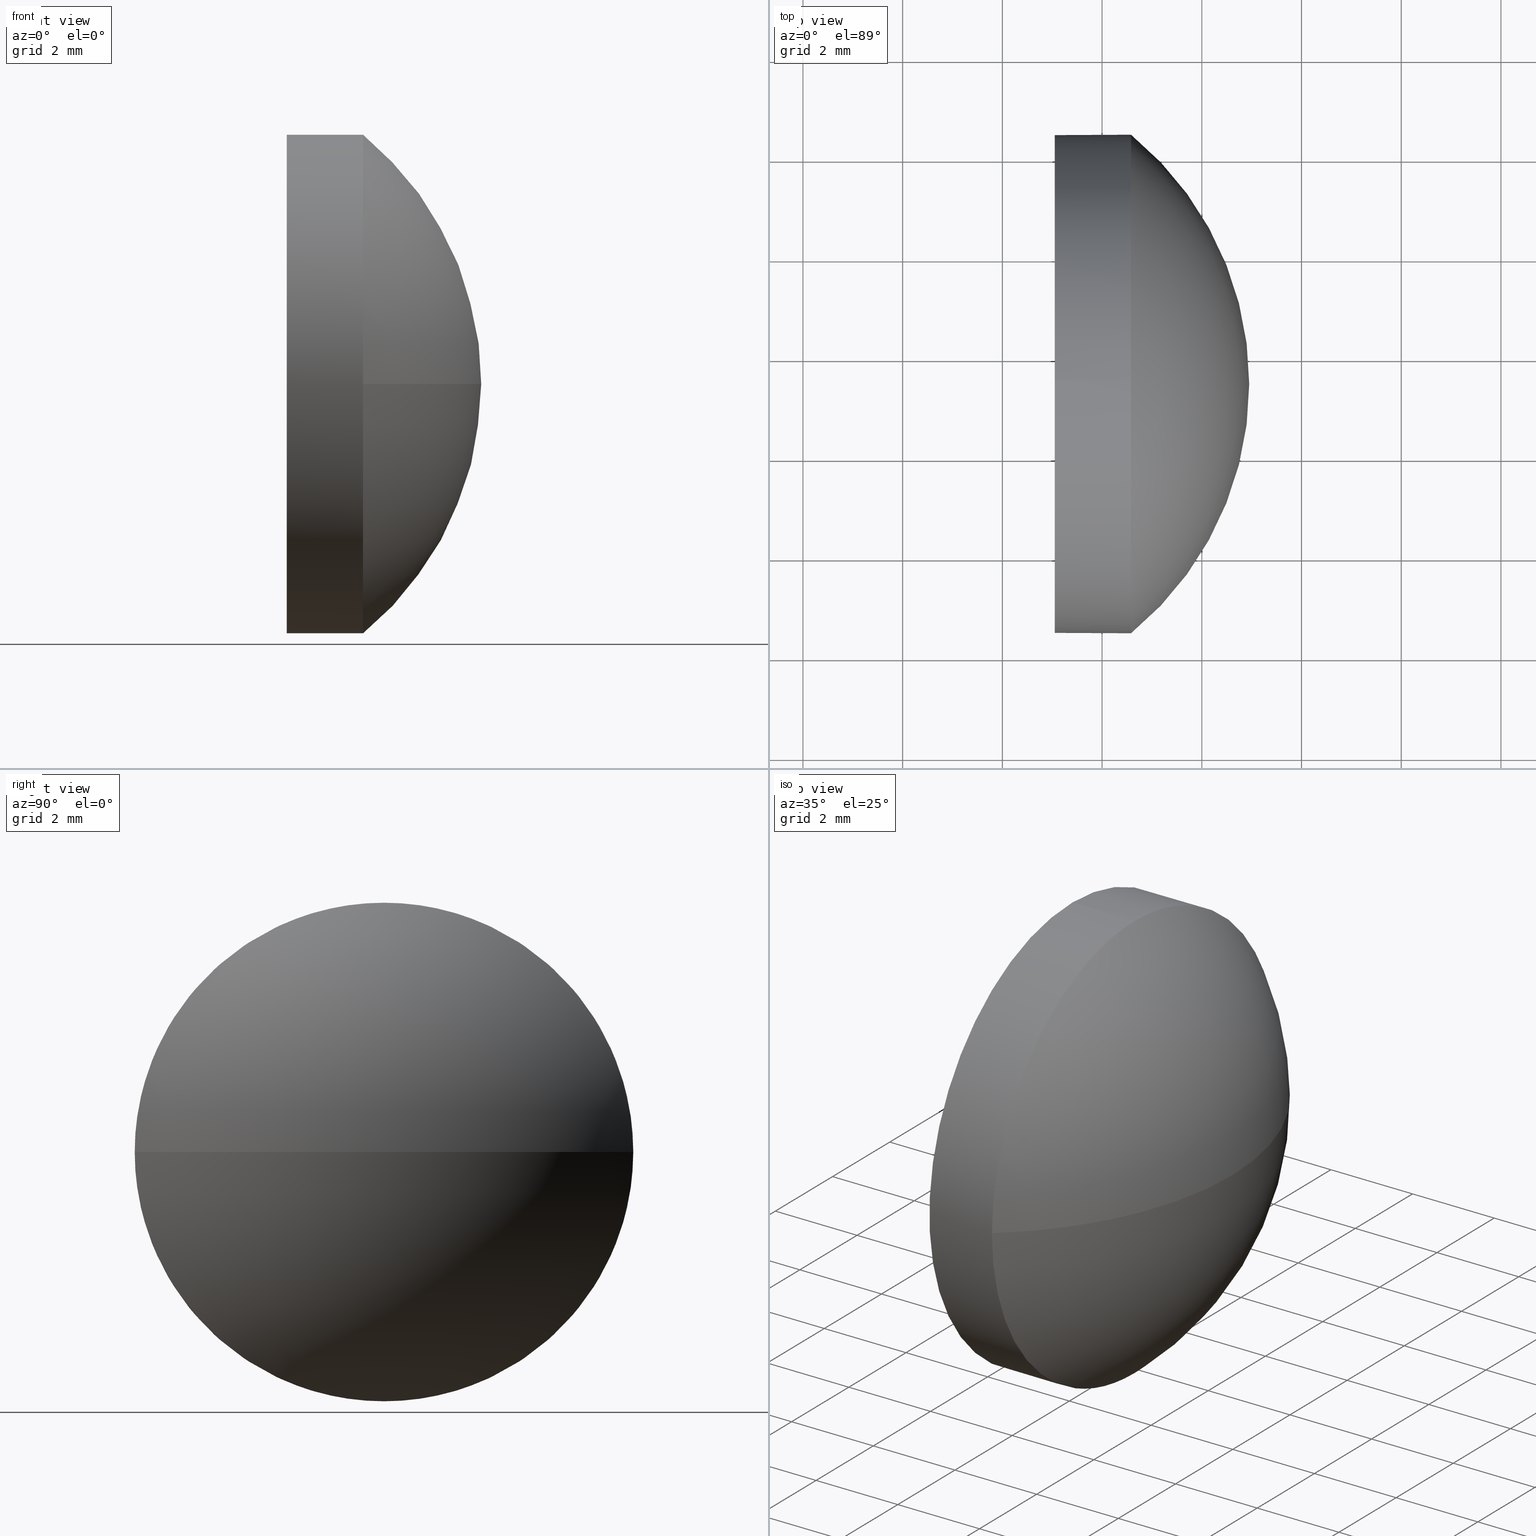
[diagram: canonical four-view strip — front | top / right | iso, engineering-drawing reading convention]
A machine part, canonical four-view strip (front | top / right | iso — engineering-drawing reading convention). The complete STEP part file that produces these views, byte-faithful:
ISO-10303-21;
HEADER;
FILE_DESCRIPTION (( 'STEP AP214' ),
    '1' );
FILE_NAME ('100186.STEP',
    '2019-05-21T05:49:32',
    ( '' ),
    ( '' ),
    'SwSTEP 2.0',
    'SolidWorks 2016',
    '' );
FILE_SCHEMA (( 'AUTOMOTIVE_DESIGN' ));
ENDSEC;

DATA;
#1 = PRESENTATION_LAYER_ASSIGNMENT (  '', '', ( #114 ) ) ;
#2 = PRODUCT_DEFINITION ( 'δ֪', '', #73, #129 ) ;
#3 = ADVANCED_BREP_SHAPE_REPRESENTATION ( '100186', ( #124, #131 ), #48 ) ;
#4 = CARTESIAN_POINT ( 'NONE',  ( 424.5813353116467400, -21.53983811112432500, 0.0000000000000000000 ) ) ;
#5 = AXIS2_PLACEMENT_3D ( 'NONE', #77, #107, #137 ) ;
#6 = ORIENTED_EDGE ( 'NONE', *, *, #170, .T. ) ;
#7 = PRODUCT ( '100186', '100186', '', ( #68 ) ) ;
#8 = DIRECTION ( 'NONE',  ( 0.0000000000000000000, 1.000000000000000000, 1.224646799147353200E-016 ) ) ;
#9 = FILL_AREA_STYLE_COLOUR ( '', #83 ) ;
#10 = FACE_OUTER_BOUND ( 'NONE', #123, .T. ) ;
#11 = DIRECTION ( 'NONE',  ( -1.000000000000000000, -0.0000000000000000000, -0.0000000000000000000 ) ) ;
#12 =( LENGTH_UNIT ( ) NAMED_UNIT ( * ) SI_UNIT ( .MILLI., .METRE. ) );
#13 = CARTESIAN_POINT ( 'NONE',  ( 424.5813353116467400, -26.53983811112431500, 0.0000000000000000000 ) ) ;
#14 = VERTEX_POINT ( 'NONE', #4 ) ;
#15 = AXIS2_PLACEMENT_3D ( 'NONE', #96, #29, #44 ) ;
#16 = ORIENTED_EDGE ( 'NONE', *, *, #150, .F. ) ;
#17 = ADVANCED_FACE ( 'NONE', ( #76 ), #156, .T. ) ;
#18 = VERTEX_POINT ( 'NONE', #160 ) ;
#19 = ORIENTED_EDGE ( 'NONE', *, *, #145, .T. ) ;
#20 = EDGE_CURVE ( 'NONE', #112, #167, #117, .T. ) ;
#21 = CARTESIAN_POINT ( 'NONE',  ( 426.9513353116466900, -26.53983811112431500, 0.0000000000000000000 ) ) ;
#22 = VERTEX_POINT ( 'NONE', #172 ) ;
#23 =( NAMED_UNIT ( * ) PLANE_ANGLE_UNIT ( ) SI_UNIT ( $, .RADIAN. ) );
#24 = DIRECTION ( 'NONE',  ( 0.0000000000000000000, 0.0000000000000000000, -1.000000000000000000 ) ) ;
#25 = SPHERICAL_SURFACE ( 'NONE', #159, 6.459261603375517200 ) ;
#26 = DIRECTION ( 'NONE',  ( 1.000000000000000000, 0.0000000000000000000, 0.0000000000000000000 ) ) ;
#27 = UNCERTAINTY_MEASURE_WITH_UNIT (LENGTH_MEASURE( 1.000000000000000100E-005 ), #168, 'distance_accuracy_value', 'NONE');
#28 = DIRECTION ( 'NONE',  ( 0.0000000000000000000, 0.0000000000000000000, 1.000000000000000000 ) ) ;
#29 = DIRECTION ( 'NONE',  ( -0.0000000000000000000, 0.0000000000000000000, 1.000000000000000000 ) ) ;
#30 =( NAMED_UNIT ( * ) PLANE_ANGLE_UNIT ( ) SI_UNIT ( $, .RADIAN. ) );
#31 = AXIS2_PLACEMENT_3D ( 'NONE', #116, #37, #162 ) ;
#32 = ORIENTED_EDGE ( 'NONE', *, *, #102, .T. ) ;
#33 = LINE ( 'NONE', #110, #78 ) ;
#34 = ADVANCED_FACE ( 'NONE', ( #59 ), #25, .T. ) ;
#35 = FACE_OUTER_BOUND ( 'NONE', #104, .T. ) ;
#36 = AXIS2_PLACEMENT_3D ( 'NONE', #64, #67, #176 ) ;
#37 = DIRECTION ( 'NONE',  ( -0.0000000000000000000, 0.0000000000000000000, -1.000000000000000000 ) ) ;
#38 = DIRECTION ( 'NONE',  ( -1.000000000000000000, -0.0000000000000000000, -0.0000000000000000000 ) ) ;
#39 = AXIS2_PLACEMENT_3D ( 'NONE', #13, #11, #28 ) ;
#40 = DIRECTION ( 'NONE',  ( -1.000000000000000000, -0.0000000000000000000, -0.0000000000000000000 ) ) ;
#41 = DIRECTION ( 'NONE',  ( -1.000000000000000000, -0.0000000000000000000, -0.0000000000000000000 ) ) ;
#42 = AXIS2_PLACEMENT_3D ( 'NONE', #135, #40, #165 ) ;
#43 = UNCERTAINTY_MEASURE_WITH_UNIT (LENGTH_MEASURE( 1.000000000000000100E-005 ), #118, 'distance_accuracy_value', 'NONE');
#44 = DIRECTION ( 'NONE',  ( 1.000000000000000000, 0.0000000000000000000, 0.0000000000000000000 ) ) ;
#45 = ORIENTED_EDGE ( 'NONE', *, *, #170, .F. ) ;
#46 = EDGE_CURVE ( 'NONE', #57, #22, #49, .T. ) ;
#47 = ORIENTED_EDGE ( 'NONE', *, *, #92, .T. ) ;
#48 =( GEOMETRIC_REPRESENTATION_CONTEXT ( 3 ) GLOBAL_UNCERTAINTY_ASSIGNED_CONTEXT ( ( #141 ) ) GLOBAL_UNIT_ASSIGNED_CONTEXT ( ( #12, #180, #99 ) ) REPRESENTATION_CONTEXT ( 'NONE', 'WORKASPACE' ) );
#49 = CIRCLE ( 'NONE', #178, 4.999999999999997300 ) ;
#50 =( NAMED_UNIT ( * ) SI_UNIT ( $, .STERADIAN. ) SOLID_ANGLE_UNIT ( ) );
#51 = PRESENTATION_STYLE_ASSIGNMENT (( #140 ) ) ;
#52 = ORIENTED_EDGE ( 'NONE', *, *, #97, .F. ) ;
#53 = FILL_AREA_STYLE ('',( #9 ) ) ;
#54 = CARTESIAN_POINT ( 'NONE',  ( 422.2536630575812600, -26.53983811112431500, 4.999999999999997300 ) ) ;
#55 = PRESENTATION_LAYER_ASSIGNMENT (  '', '', ( #113 ) ) ;
#56 = CARTESIAN_POINT ( 'NONE',  ( 423.0513353116466500, -26.53983811112431500, 0.0000000000000000000 ) ) ;
#57 = VERTEX_POINT ( 'NONE', #122 ) ;
#58 = APPLICATION_CONTEXT ( 'automotive_design' ) ;
#59 = FACE_OUTER_BOUND ( 'NONE', #119, .T. ) ;
#60 = ORIENTED_EDGE ( 'NONE', *, *, #105, .T. ) ;
#61 = SURFACE_STYLE_FILL_AREA ( #53 ) ;
#62 =( GEOMETRIC_REPRESENTATION_CONTEXT ( 3 ) GLOBAL_UNCERTAINTY_ASSIGNED_CONTEXT ( ( #43 ) ) GLOBAL_UNIT_ASSIGNED_CONTEXT ( ( #118, #23, #50 ) ) REPRESENTATION_CONTEXT ( 'NONE', 'WORKASPACE' ) );
#63 = PRESENTATION_STYLE_ASSIGNMENT (( #166 ) ) ;
#64 = CARTESIAN_POINT ( 'NONE',  ( 422.2536630575812600, -26.53983811112431500, 0.0000000000000000000 ) ) ;
#65 = ORIENTED_EDGE ( 'NONE', *, *, #133, .T. ) ;
#66 = PLANE ( 'NONE',  #143 ) ;
#67 = DIRECTION ( 'NONE',  ( -1.000000000000000000, -0.0000000000000000000, -0.0000000000000000000 ) ) ;
#68 = PRODUCT_CONTEXT ( 'NONE', #127, 'mechanical' ) ;
#69 = SURFACE_SIDE_STYLE ('',( #125 ) ) ;
#70 = CYLINDRICAL_SURFACE ( 'NONE', #74, 4.999999999999997300 ) ;
#71 = AXIS2_PLACEMENT_3D ( 'NONE', #174, #109, #8 ) ;
#72 = CIRCLE ( 'NONE', #88, 4.999999999999997300 ) ;
#73 = PRODUCT_DEFINITION_FORMATION_WITH_SPECIFIED_SOURCE ( '�κ�', '', #7, .NOT_KNOWN. ) ;
#74 = AXIS2_PLACEMENT_3D ( 'NONE', #138, #41, #98 ) ;
#75 = CIRCLE ( 'NONE', #39, 4.999999999999997300 ) ;
#76 = FACE_OUTER_BOUND ( 'NONE', #148, .T. ) ;
#77 = CARTESIAN_POINT ( 'NONE',  ( 424.5813353116467400, -26.53983811112431500, 0.0000000000000000000 ) ) ;
#78 = VECTOR ( 'NONE', #182, 1000.000000000000000 ) ;
#79 = CLOSED_SHELL ( 'NONE', ( #169, #34, #17, #142, #132 ) ) ;
#80 = DIRECTION ( 'NONE',  ( 0.0000000000000000000, 0.0000000000000000000, 1.000000000000000000 ) ) ;
#81 = DIRECTION ( 'NONE',  ( -1.000000000000000000, -0.0000000000000000000, -0.0000000000000000000 ) ) ;
#82 = MECHANICAL_DESIGN_GEOMETRIC_PRESENTATION_REPRESENTATION (  '', ( #113 ), #130 ) ;
#83 = COLOUR_RGB ( '',1.000000000000000000, 1.000000000000000000, 1.000000000000000000 ) ;
#84 = CARTESIAN_POINT ( 'NONE',  ( 0.0000000000000000000, 0.0000000000000000000, 0.0000000000000000000 ) ) ;
#85 = DIRECTION ( 'NONE',  ( 0.0000000000000000000, 0.0000000000000000000, 1.000000000000000000 ) ) ;
#86 = ORIENTED_EDGE ( 'NONE', *, *, #46, .F. ) ;
#87 = ORIENTED_EDGE ( 'NONE', *, *, #20, .F. ) ;
#88 = AXIS2_PLACEMENT_3D ( 'NONE', #56, #38, #136 ) ;
#89 = COLOUR_RGB ( '',1.000000000000000000, 1.000000000000000000, 1.000000000000000000 ) ;
#90 = CARTESIAN_POINT ( 'NONE',  ( 423.0513353116466500, -26.53983811112431500, 0.0000000000000000000 ) ) ;
#91 = ORIENTED_EDGE ( 'NONE', *, *, #46, .T. ) ;
#92 = EDGE_CURVE ( 'NONE', #18, #167, #115, .T. ) ;
#93 = CARTESIAN_POINT ( 'NONE',  ( 424.5813353116467400, -26.53983811112431500, 0.0000000000000000000 ) ) ;
#94 = ORIENTED_EDGE ( 'NONE', *, *, #92, .F. ) ;
#95 = PRODUCT_DEFINITION_SHAPE ( 'NONE', 'NONE',  #2 ) ;
#96 = CARTESIAN_POINT ( 'NONE',  ( 420.4920737082711600, -26.53983811112431500, 0.0000000000000000000 ) ) ;
#97 = EDGE_CURVE ( 'NONE', #164, #22, #186, .T. ) ;
#98 = DIRECTION ( 'NONE',  ( 0.0000000000000000000, 0.0000000000000000000, 1.000000000000000000 ) ) ;
#99 =( NAMED_UNIT ( * ) SI_UNIT ( $, .STERADIAN. ) SOLID_ANGLE_UNIT ( ) );
#100 = ORIENTED_EDGE ( 'NONE', *, *, #150, .T. ) ;
#101 = AXIS2_PLACEMENT_3D ( 'NONE', #93, #139, #163 ) ;
#102 = EDGE_CURVE ( 'NONE', #22, #57, #72, .T. ) ;
#103 = FACE_OUTER_BOUND ( 'NONE', #157, .T. ) ;
#104 = EDGE_LOOP ( 'NONE', ( #45, #47, #65, #161, #86 ) ) ;
#105 = EDGE_CURVE ( 'NONE', #14, #18, #128, .T. ) ;
#106 = DIRECTION ( 'NONE',  ( 1.000000000000000000, 0.0000000000000000000, 0.0000000000000000000 ) ) ;
#107 = DIRECTION ( 'NONE',  ( -1.000000000000000000, -0.0000000000000000000, -0.0000000000000000000 ) ) ;
#108 = VECTOR ( 'NONE', #147, 1000.000000000000000 ) ;
#109 = DIRECTION ( 'NONE',  ( 0.0000000000000000000, 1.224646799147353200E-016, -1.000000000000000000 ) ) ;
#110 = CARTESIAN_POINT ( 'NONE',  ( 422.2536630575812600, -26.53983811112431500, -4.999999999999997300 ) ) ;
#111 = SHAPE_DEFINITION_REPRESENTATION ( #95, #3 ) ;
#112 = VERTEX_POINT ( 'NONE', #21 ) ;
#113 = STYLED_ITEM ( 'NONE', ( #51 ), #3 ) ;
#114 = STYLED_ITEM ( 'NONE', ( #63 ), #124 ) ;
#115 = CIRCLE ( 'NONE', #42, 4.999999999999997300 ) ;
#116 = CARTESIAN_POINT ( 'NONE',  ( 420.4920737082711600, -26.53983811112431500, 0.0000000000000000000 ) ) ;
#117 = CIRCLE ( 'NONE', #71, 6.459261603375517200 ) ;
#118 =( LENGTH_UNIT ( ) NAMED_UNIT ( * ) SI_UNIT ( .MILLI., .METRE. ) );
#119 = EDGE_LOOP ( 'NONE', ( #158, #177, #94, #126 ) ) ;
#120 = CARTESIAN_POINT ( 'NONE',  ( 420.4920737082711600, -26.53983811112431500, 0.0000000000000000000 ) ) ;
#121 = DIRECTION ( 'NONE',  ( 0.0000000000000000000, 1.000000000000000000, 0.0000000000000000000 ) ) ;
#122 = CARTESIAN_POINT ( 'NONE',  ( 423.0513353116466500, -26.53983811112431500, -4.999999999999997300 ) ) ;
#123 = EDGE_LOOP ( 'NONE', ( #32, #91 ) ) ;
#124 = MANIFOLD_SOLID_BREP ( '��ת2', #79 ) ;
#125 = SURFACE_STYLE_FILL_AREA ( #152 ) ;
#126 = ORIENTED_EDGE ( 'NONE', *, *, #105, .F. ) ;
#127 = APPLICATION_CONTEXT ( 'automotive_design' ) ;
#128 = CIRCLE ( 'NONE', #101, 4.999999999999997300 ) ;
#129 = PRODUCT_DEFINITION_CONTEXT ( 'detailed design', #58, 'design' ) ;
#130 =( GEOMETRIC_REPRESENTATION_CONTEXT ( 3 ) GLOBAL_UNCERTAINTY_ASSIGNED_CONTEXT ( ( #27 ) ) GLOBAL_UNIT_ASSIGNED_CONTEXT ( ( #168, #30, #183 ) ) REPRESENTATION_CONTEXT ( 'NONE', 'WORKASPACE' ) );
#131 = AXIS2_PLACEMENT_3D ( 'NONE', #84, #85, #26 ) ;
#132 = ADVANCED_FACE ( 'NONE', ( #10 ), #66, .F. ) ;
#133 = EDGE_CURVE ( 'NONE', #167, #164, #134, .T. ) ;
#134 = CIRCLE ( 'NONE', #5, 4.999999999999997300 ) ;
#135 = CARTESIAN_POINT ( 'NONE',  ( 424.5813353116467400, -26.53983811112431500, 0.0000000000000000000 ) ) ;
#136 = DIRECTION ( 'NONE',  ( 0.0000000000000000000, 0.0000000000000000000, 1.000000000000000000 ) ) ;
#137 = DIRECTION ( 'NONE',  ( 0.0000000000000000000, 0.0000000000000000000, 1.000000000000000000 ) ) ;
#138 = CARTESIAN_POINT ( 'NONE',  ( 422.2536630575812600, -26.53983811112431500, 0.0000000000000000000 ) ) ;
#139 = DIRECTION ( 'NONE',  ( -1.000000000000000000, -0.0000000000000000000, -0.0000000000000000000 ) ) ;
#140 = SURFACE_STYLE_USAGE ( .BOTH. , #69 ) ;
#141 = UNCERTAINTY_MEASURE_WITH_UNIT (LENGTH_MEASURE( 1.000000000000000100E-005 ), #12, 'distance_accuracy_value', 'NONE');
#142 = ADVANCED_FACE ( 'NONE', ( #35 ), #154, .T. ) ;
#143 = AXIS2_PLACEMENT_3D ( 'NONE', #90, #106, #24 ) ;
#144 = ORIENTED_EDGE ( 'NONE', *, *, #133, .F. ) ;
#145 = EDGE_CURVE ( 'NONE', #112, #14, #173, .T. ) ;
#146 = DIRECTION ( 'NONE',  ( -0.0000000000000000000, 0.0000000000000000000, -1.000000000000000000 ) ) ;
#147 = DIRECTION ( 'NONE',  ( -1.000000000000000000, -0.0000000000000000000, -0.0000000000000000000 ) ) ;
#148 = EDGE_LOOP ( 'NONE', ( #87, #19, #16, #144 ) ) ;
#149 = CARTESIAN_POINT ( 'NONE',  ( 424.5813353116467400, -31.53983811112430400, -6.123233995736756400E-016 ) ) ;
#150 = EDGE_CURVE ( 'NONE', #164, #14, #75, .T. ) ;
#151 = SURFACE_SIDE_STYLE ('',( #61 ) ) ;
#152 = FILL_AREA_STYLE ('',( #155 ) ) ;
#153 = APPLICATION_PROTOCOL_DEFINITION ( 'draft international standard', 'automotive_design', 1998, #58 ) ;
#154 = CYLINDRICAL_SURFACE ( 'NONE', #36, 4.999999999999997300 ) ;
#155 = FILL_AREA_STYLE_COLOUR ( '', #89 ) ;
#156 = SPHERICAL_SURFACE ( 'NONE', #31, 6.459261603375517200 ) ;
#157 = EDGE_LOOP ( 'NONE', ( #60, #6, #185, #52, #100 ) ) ;
#158 = ORIENTED_EDGE ( 'NONE', *, *, #145, .F. ) ;
#159 = AXIS2_PLACEMENT_3D ( 'NONE', #120, #146, #121 ) ;
#160 = CARTESIAN_POINT ( 'NONE',  ( 424.5813353116467400, -26.53983811112431500, -4.999999999999997300 ) ) ;
#161 = ORIENTED_EDGE ( 'NONE', *, *, #97, .T. ) ;
#162 = DIRECTION ( 'NONE',  ( 0.0000000000000000000, 1.000000000000000000, 0.0000000000000000000 ) ) ;
#163 = DIRECTION ( 'NONE',  ( 0.0000000000000000000, 0.0000000000000000000, 1.000000000000000000 ) ) ;
#164 = VERTEX_POINT ( 'NONE', #179 ) ;
#165 = DIRECTION ( 'NONE',  ( 0.0000000000000000000, 0.0000000000000000000, 1.000000000000000000 ) ) ;
#166 = SURFACE_STYLE_USAGE ( .BOTH. , #151 ) ;
#167 = VERTEX_POINT ( 'NONE', #149 ) ;
#168 =( LENGTH_UNIT ( ) NAMED_UNIT ( * ) SI_UNIT ( .MILLI., .METRE. ) );
#169 = ADVANCED_FACE ( 'NONE', ( #103 ), #70, .T. ) ;
#170 = EDGE_CURVE ( 'NONE', #18, #57, #33, .T. ) ;
#171 = PRODUCT_RELATED_PRODUCT_CATEGORY ( 'part', '', ( #7 ) ) ;
#172 = CARTESIAN_POINT ( 'NONE',  ( 423.0513353116466500, -26.53983811112431500, 4.999999999999997300 ) ) ;
#173 = CIRCLE ( 'NONE', #15, 6.459261603375510100 ) ;
#174 = CARTESIAN_POINT ( 'NONE',  ( 420.4920737082711600, -26.53983811112431500, 0.0000000000000000000 ) ) ;
#175 = CARTESIAN_POINT ( 'NONE',  ( 423.0513353116466500, -26.53983811112431500, 0.0000000000000000000 ) ) ;
#176 = DIRECTION ( 'NONE',  ( 0.0000000000000000000, 0.0000000000000000000, 1.000000000000000000 ) ) ;
#177 = ORIENTED_EDGE ( 'NONE', *, *, #20, .T. ) ;
#178 = AXIS2_PLACEMENT_3D ( 'NONE', #175, #81, #80 ) ;
#179 = CARTESIAN_POINT ( 'NONE',  ( 424.5813353116467400, -26.53983811112431500, 4.999999999999997300 ) ) ;
#180 =( NAMED_UNIT ( * ) PLANE_ANGLE_UNIT ( ) SI_UNIT ( $, .RADIAN. ) );
#181 = APPLICATION_PROTOCOL_DEFINITION ( 'draft international standard', 'automotive_design', 1998, #127 ) ;
#182 = DIRECTION ( 'NONE',  ( -1.000000000000000000, -0.0000000000000000000, -0.0000000000000000000 ) ) ;
#183 =( NAMED_UNIT ( * ) SI_UNIT ( $, .STERADIAN. ) SOLID_ANGLE_UNIT ( ) );
#184 = MECHANICAL_DESIGN_GEOMETRIC_PRESENTATION_REPRESENTATION (  '', ( #114 ), #62 ) ;
#185 = ORIENTED_EDGE ( 'NONE', *, *, #102, .F. ) ;
#186 = LINE ( 'NONE', #54, #108 ) ;
ENDSEC;
END-ISO-10303-21;
